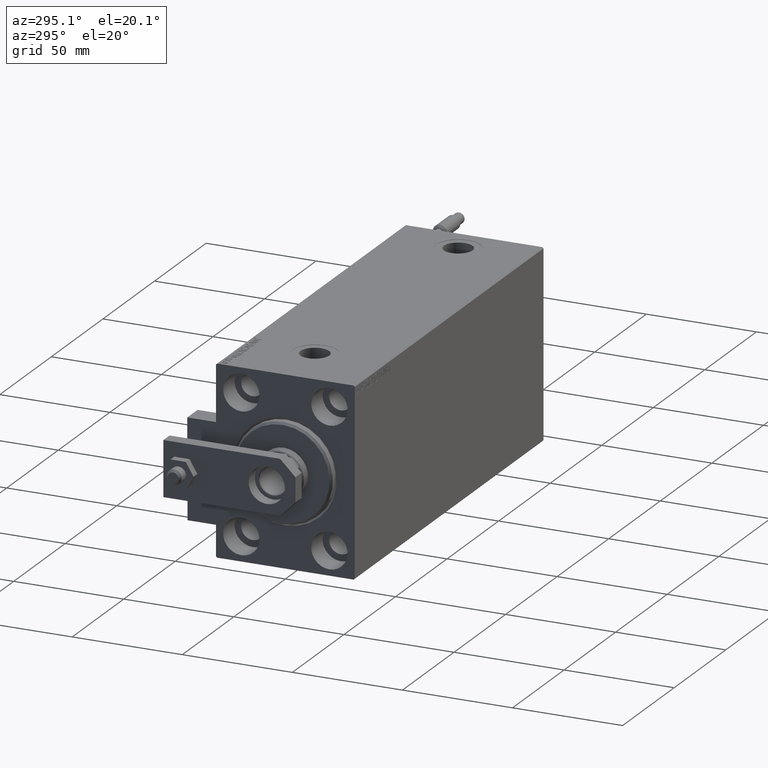
[diagram: clean part render]
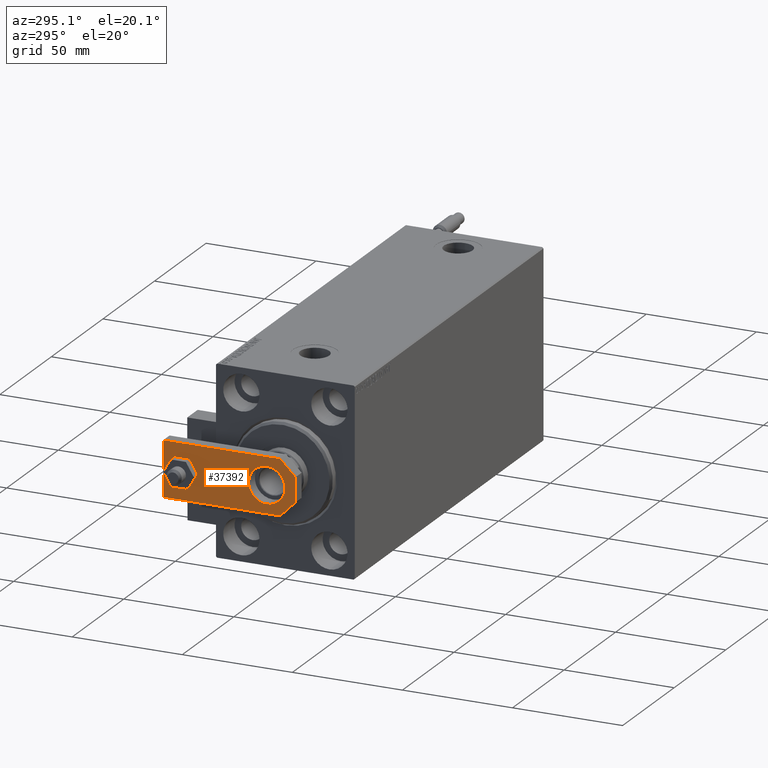
[diagram: same view with one face highlighted and labeled with its STEP entity id]
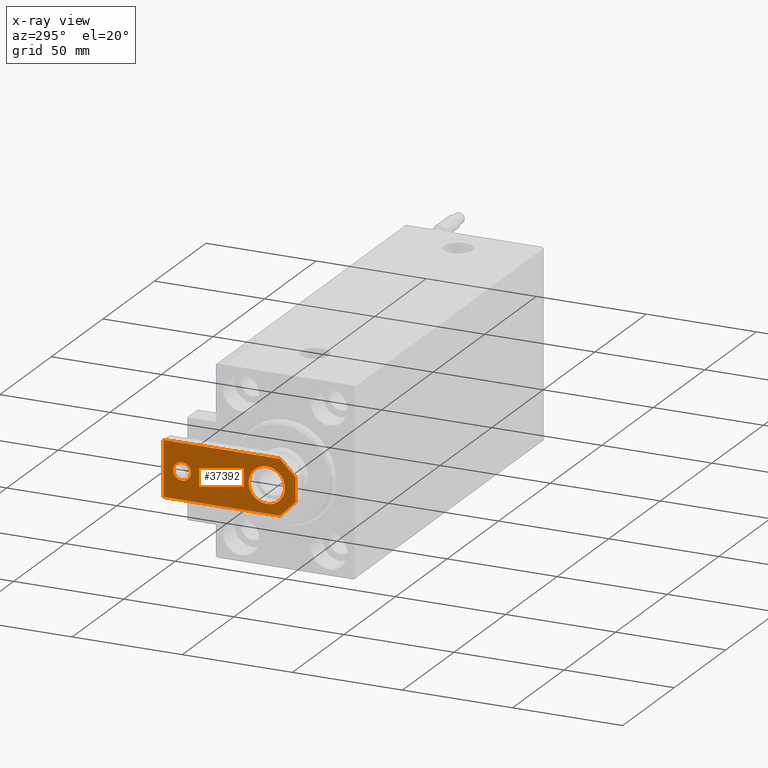
[diagram: x-ray of the same camera — body ghosted, the highlighted face saturated]
A machine part, auxiliary view. The second image highlights one B-rep face of the part: STEP entity #37392.
The next image is the same camera in x-ray: the body ghosted, the highlighted face saturated — about 0% of this face is hidden behind the body in this view.
In plain terms, the highlighted planar face has unit normal (-1, 0, 0).
Its self-contained STEP definition (entity closure, byte-faithful):
#296 = AXIS2_PLACEMENT_3D ( 'NONE', #9041, #24897, #1854 ) ;
#504 = ORIENTED_EDGE ( 'NONE', *, *, #22507, .T. ) ;
#681 = CARTESIAN_POINT ( 'NONE',  ( -12.50000000000000355, 7.000000000000013323, 6.000000000000000000 ) ) ;
#1069 = DIRECTION ( 'NONE',  ( 1.000000000000000000, 0.000000000000000000, 0.000000000000000000 ) ) ;
#1794 = CARTESIAN_POINT ( 'NONE',  ( 12.50000000000000355, 60.00000000000000000, 6.000000000000000000 ) ) ;
#1811 = VERTEX_POINT ( 'NONE', #10670 ) ;
#1854 = DIRECTION ( 'NONE',  ( 1.000000000000000000, 0.000000000000000000, 0.000000000000000000 ) ) ;
#2780 = CIRCLE ( 'NONE', #296, 8.250000000000000000 ) ;
#3256 = VECTOR ( 'NONE', #43188, 1000.000000000000000 ) ;
#3721 = EDGE_CURVE ( 'NONE', #11983, #14663, #11442, .T. ) ;
#3799 = CARTESIAN_POINT ( 'NONE',  ( 12.50000000000000355, 4.814824860968089633E-32, 6.000000000000000000 ) ) ;
#3883 = VECTOR ( 'NONE', #40263, 1000.000000000000000 ) ;
#4104 = VECTOR ( 'NONE', #20831, 999.9999999999998863 ) ;
#4298 = DIRECTION ( 'NONE',  ( 0.000000000000000000, 0.000000000000000000, 1.000000000000000000 ) ) ;
#4910 = FACE_BOUND ( 'NONE', #34566, .T. ) ;
#4969 = CARTESIAN_POINT ( 'NONE',  ( -12.50000000000000355, 4.814824860968089633E-32, 6.000000000000000000 ) ) ;
#5236 = CARTESIAN_POINT ( 'NONE',  ( 2.749999999999980016, -2.749999999999988010, 6.000000000000000000 ) ) ;
#5387 = CARTESIAN_POINT ( 'NONE',  ( -1.432611055310774642E-16, 51.50000000000000000, 6.000000000000000000 ) ) ;
#5723 = LINE ( 'NONE', #4969, #3883 ) ;
#7059 = ORIENTED_EDGE ( 'NONE', *, *, #37928, .T. ) ;
#7132 = VECTOR ( 'NONE', #32998, 1000.000000000000000 ) ;
#7228 = EDGE_CURVE ( 'NONE', #24234, #11983, #40180, .T. ) ;
#7379 = CARTESIAN_POINT ( 'NONE',  ( -1.432611055310774642E-16, 51.50000000000000000, 6.000000000000000000 ) ) ;
#7598 = CARTESIAN_POINT ( 'NONE',  ( 4.000000000000000888, 51.50000000000000000, 6.000000000000000000 ) ) ;
#9041 = CARTESIAN_POINT ( 'NONE',  ( -9.629649721936179265E-32, 12.99999999999999822, 6.000000000000000000 ) ) ;
#9396 = ORIENTED_EDGE ( 'NONE', *, *, #39983, .T. ) ;
#9753 = FACE_OUTER_BOUND ( 'NONE', #45588, .T. ) ;
#10177 = CARTESIAN_POINT ( 'NONE',  ( 8.250000000000000000, 13.00000000000000000, 6.000000000000000000 ) ) ;
#10567 = ORIENTED_EDGE ( 'NONE', *, *, #32556, .F. ) ;
#10670 = CARTESIAN_POINT ( 'NONE',  ( 5.499999999999976907, 4.814824860968089633E-32, 6.000000000000000000 ) ) ;
#11019 = VERTEX_POINT ( 'NONE', #21393 ) ;
#11355 = CARTESIAN_POINT ( 'NONE',  ( -2.750000000000013767, -2.750000000000005773, 6.000000000000000000 ) ) ;
#11442 = LINE ( 'NONE', #34973, #31502 ) ;
#11939 = DIRECTION ( 'NONE',  ( -8.673617379884035472E-17, -1.000000000000000000, 0.000000000000000000 ) ) ;
#11983 = VERTEX_POINT ( 'NONE', #28575 ) ;
#13233 = ORIENTED_EDGE ( 'NONE', *, *, #17651, .T. ) ;
#13713 = VERTEX_POINT ( 'NONE', #10177 ) ;
#14663 = VERTEX_POINT ( 'NONE', #681 ) ;
#17139 = DIRECTION ( 'NONE',  ( 1.000000000000000000, 0.000000000000000000, 0.000000000000000000 ) ) ;
#17651 = EDGE_CURVE ( 'NONE', #14663, #23546, #18773, .T. ) ;
#18444 = DIRECTION ( 'NONE',  ( 1.000000000000000000, 0.000000000000000000, 0.000000000000000000 ) ) ;
#18773 = LINE ( 'NONE', #11355, #30230 ) ;
#19443 = AXIS2_PLACEMENT_3D ( 'NONE', #22547, #22047, #18444 ) ;
#19790 = DIRECTION ( 'NONE',  ( 0.000000000000000000, 0.000000000000000000, 1.000000000000000000 ) ) ;
#19877 = CIRCLE ( 'NONE', #27252, 4.000000000000000888 ) ;
#20831 = DIRECTION ( 'NONE',  ( 0.7071067811865486830, 0.7071067811865464625, -0.000000000000000000 ) ) ;
#21393 = CARTESIAN_POINT ( 'NONE',  ( -8.250000000000000000, 12.99999999999999822, 6.000000000000000000 ) ) ;
#22047 = DIRECTION ( 'NONE',  ( 0.000000000000000000, 0.000000000000000000, 1.000000000000000000 ) ) ;
#22507 = EDGE_CURVE ( 'NONE', #23546, #1811, #5723, .T. ) ;
#22547 = CARTESIAN_POINT ( 'NONE',  ( -9.629649721936179265E-32, 12.99999999999999822, 6.000000000000000000 ) ) ;
#23546 = VERTEX_POINT ( 'NONE', #46126 ) ;
#24090 = ORIENTED_EDGE ( 'NONE', *, *, #3721, .T. ) ;
#24201 = CARTESIAN_POINT ( 'NONE',  ( -4.000000000000000888, 51.50000000000000000, 6.000000000000000000 ) ) ;
#24234 = VERTEX_POINT ( 'NONE', #50119 ) ;
#24897 = DIRECTION ( 'NONE',  ( 0.000000000000000000, 0.000000000000000000, 1.000000000000000000 ) ) ;
#25364 = PLANE ( 'NONE',  #27808 ) ;
#25797 = ORIENTED_EDGE ( 'NONE', *, *, #38972, .F. ) ;
#27132 = ORIENTED_EDGE ( 'NONE', *, *, #49152, .F. ) ;
#27252 = AXIS2_PLACEMENT_3D ( 'NONE', #5387, #19790, #17139 ) ;
#27808 = AXIS2_PLACEMENT_3D ( 'NONE', #36124, #35861, #1069 ) ;
#28575 = CARTESIAN_POINT ( 'NONE',  ( -12.49999999999999822, 60.00000000000000000, 6.000000000000000000 ) ) ;
#29250 = ORIENTED_EDGE ( 'NONE', *, *, #48061, .F. ) ;
#30230 = VECTOR ( 'NONE', #50011, 1000.000000000000000 ) ;
#31502 = VECTOR ( 'NONE', #11939, 1000.000000000000000 ) ;
#32556 = EDGE_CURVE ( 'NONE', #13713, #11019, #43956, .T. ) ;
#32626 = CIRCLE ( 'NONE', #49803, 4.000000000000000888 ) ;
#32998 = DIRECTION ( 'NONE',  ( -1.000000000000000000, 0.000000000000000000, 0.000000000000000000 ) ) ;
#34359 = EDGE_LOOP ( 'NONE', ( #27132, #10567 ) ) ;
#34566 = EDGE_LOOP ( 'NONE', ( #29250, #25797 ) ) ;
#34973 = CARTESIAN_POINT ( 'NONE',  ( -12.49999999999999822, 60.00000000000000000, 6.000000000000000000 ) ) ;
#35861 = DIRECTION ( 'NONE',  ( -0.000000000000000000, 0.000000000000000000, 1.000000000000000000 ) ) ;
#36124 = CARTESIAN_POINT ( 'NONE',  ( 0.000000000000000000, 0.000000000000000000, 6.000000000000000000 ) ) ;
#37392 = ADVANCED_FACE ( 'NONE', ( #4910, #9753, #39943 ), #25364, .T. ) ;
#37928 = EDGE_CURVE ( 'NONE', #1811, #41105, #40277, .T. ) ;
#38972 = EDGE_CURVE ( 'NONE', #45718, #48733, #32626, .T. ) ;
#39089 = DIRECTION ( 'NONE',  ( 1.000000000000000000, 0.000000000000000000, 0.000000000000000000 ) ) ;
#39943 = FACE_BOUND ( 'NONE', #34359, .T. ) ;
#39983 = EDGE_CURVE ( 'NONE', #41105, #24234, #46794, .T. ) ;
#40180 = LINE ( 'NONE', #1794, #7132 ) ;
#40263 = DIRECTION ( 'NONE',  ( 1.000000000000000000, 0.000000000000000000, 0.000000000000000000 ) ) ;
#40277 = LINE ( 'NONE', #5236, #4104 ) ;
#40655 = ORIENTED_EDGE ( 'NONE', *, *, #7228, .T. ) ;
#41105 = VERTEX_POINT ( 'NONE', #44396 ) ;
#43188 = DIRECTION ( 'NONE',  ( 0.000000000000000000, 1.000000000000000000, 0.000000000000000000 ) ) ;
#43956 = CIRCLE ( 'NONE', #19443, 8.250000000000000000 ) ;
#44396 = CARTESIAN_POINT ( 'NONE',  ( 12.50000000000000355, 7.000000000000006217, 6.000000000000000000 ) ) ;
#45588 = EDGE_LOOP ( 'NONE', ( #24090, #13233, #504, #7059, #9396, #40655 ) ) ;
#45718 = VERTEX_POINT ( 'NONE', #7598 ) ;
#46126 = CARTESIAN_POINT ( 'NONE',  ( -5.500000000000010658, 4.814824860968089633E-32, 6.000000000000000000 ) ) ;
#46794 = LINE ( 'NONE', #3799, #3256 ) ;
#48061 = EDGE_CURVE ( 'NONE', #48733, #45718, #19877, .T. ) ;
#48733 = VERTEX_POINT ( 'NONE', #24201 ) ;
#49152 = EDGE_CURVE ( 'NONE', #11019, #13713, #2780, .T. ) ;
#49803 = AXIS2_PLACEMENT_3D ( 'NONE', #7379, #4298, #39089 ) ;
#50011 = DIRECTION ( 'NONE',  ( 0.7071067811865465735, -0.7071067811865485719, 0.000000000000000000 ) ) ;
#50119 = CARTESIAN_POINT ( 'NONE',  ( 12.50000000000000355, 60.00000000000000000, 6.000000000000000000 ) ) ;